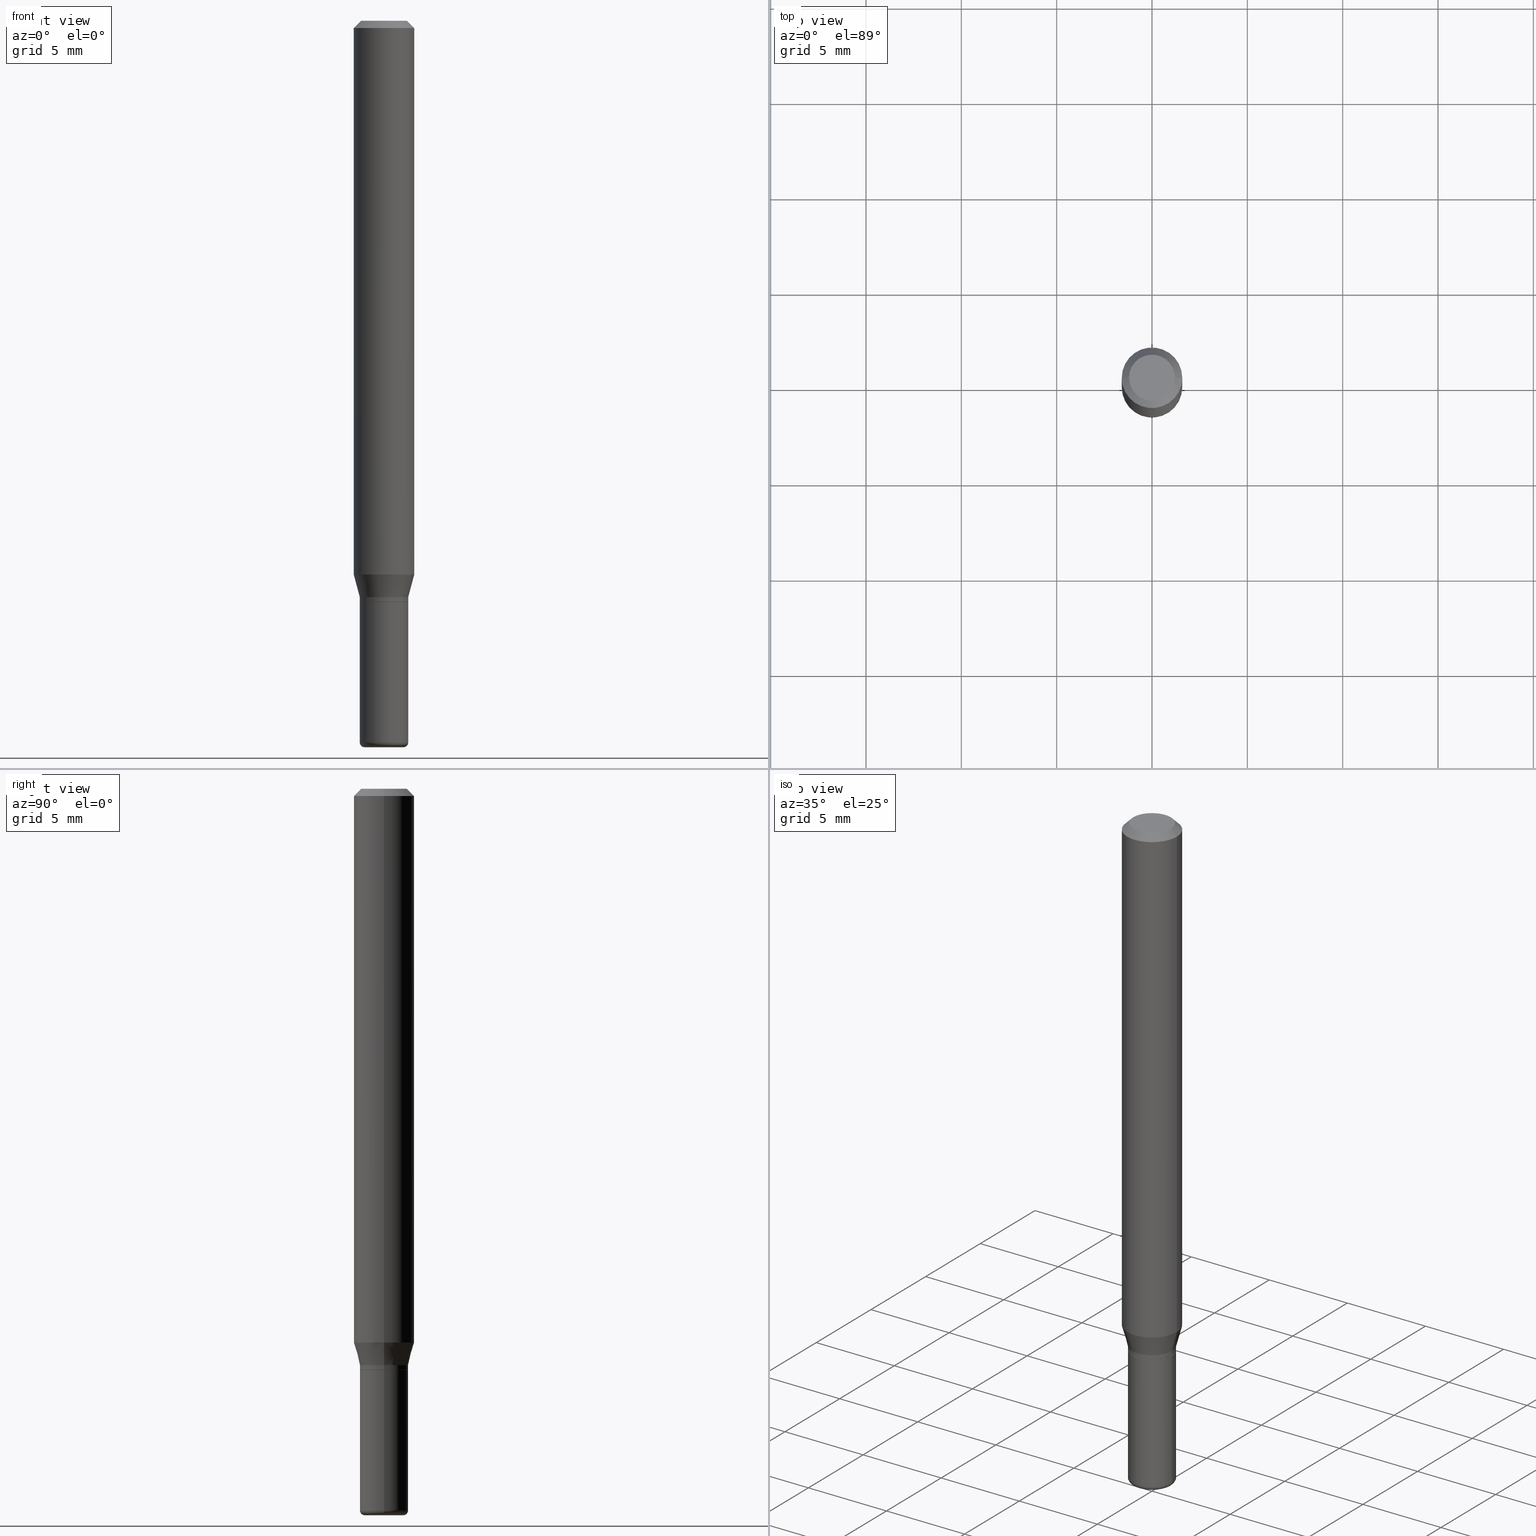
[diagram: canonical four-view strip — front | top / right | iso, engineering-drawing reading convention]
A machine part, canonical four-view strip (front | top / right | iso — engineering-drawing reading convention). The complete STEP part file that produces these views, byte-faithful:
ISO-10303-21;
HEADER;
FILE_DESCRIPTION (( 'STEP AP203' ),
    '1' );
FILE_NAME ('09079.STEP',
    '2024-02-29T21:54:36',
    ( '' ),
    ( '' ),
    'SwSTEP 2.0',
    'SolidWorks 2023',
    '' );
FILE_SCHEMA (( 'CONFIG_CONTROL_DESIGN' ));
ENDSEC;

DATA;
#1 = DATE_AND_TIME ( #123, #117 ) ;
#2 = CARTESIAN_POINT ( 'NONE',  ( 0.04949999999999997458, -4.535434259157245343E-15, -1.200000000000000178 ) ) ;
#3 = APPLICATION_PROTOCOL_DEFINITION ( 'international standard', 'config_control_design', 1994, #103 ) ;
#4 = ORIENTED_EDGE ( 'NONE', *, *, #510, .T. ) ;
#5 = CIRCLE ( 'NONE', #515, 0.04999999999999998196 ) ;
#6 = AXIS2_PLACEMENT_3D ( 'NONE', #409, #415, #56 ) ;
#7 = ORIENTED_EDGE ( 'NONE', *, *, #374, .F. ) ;
#8 = DATE_TIME_ROLE ( 'creation_date' ) ;
#9 = ADVANCED_FACE ( 'NONE', ( #127 ), #303, .T. ) ;
#10 = LINE ( 'NONE', #325, #244 ) ;
#11 = CARTESIAN_POINT ( 'NONE',  ( 2.910107879360313156E-29, -4.154862793223344154E-15, -1.190000000000000169 ) ) ;
#12 = EDGE_LOOP ( 'NONE', ( #482, #440 ) ) ;
#13 = SECURITY_CLASSIFICATION_LEVEL ( 'unclassified' ) ;
#14 = CARTESIAN_POINT ( 'NONE',  ( 2.933339833019071339E-29, -4.188031865942352722E-15, -1.199500000000000011 ) ) ;
#15 = EDGE_CURVE ( 'NONE', #270, #354, #278, .T. ) ;
#16 = AXIS2_PLACEMENT_3D ( 'NONE', #453, #287, #54 ) ;
#17 = FACE_OUTER_BOUND ( 'NONE', #476, .T. ) ;
#18 = DIRECTION ( 'NONE',  ( -2.445468806185136597E-29, 3.491481338843145583E-15, 1.000000000000000000 ) ) ;
#19 = CARTESIAN_POINT ( 'NONE',  ( -0.05000000000000000278, -4.340771032863981152E-15, -1.200000000000000178 ) ) ;
#20 = AXIS2_PLACEMENT_3D ( 'NONE', #435, #441, #121 ) ;
#21 = DIRECTION ( 'NONE',  ( -2.445468806185136877E-29, 3.491481338843145188E-15, 1.000000000000000000 ) ) ;
#22 = EDGE_CURVE ( 'NONE', #249, #208, #81, .T. ) ;
#23 = ORIENTED_EDGE ( 'NONE', *, *, #155, .T. ) ;
#24 = DIRECTION ( 'NONE',  ( -2.445468806185136597E-29, 3.491481338843145583E-15, 1.000000000000000000 ) ) ;
#25 = DIRECTION ( 'NONE',  ( -2.438088387897960049E-29, 3.491481338843145188E-15, 1.000000000000000000 ) ) ;
#26 = ORIENTED_EDGE ( 'NONE', *, *, #340, .T. ) ;
#27 = DIRECTION ( 'NONE',  ( -2.445468806185136597E-29, 3.491481338843145583E-15, 1.000000000000000000 ) ) ;
#28 = AXIS2_PLACEMENT_3D ( 'NONE', #82, #356, #162 ) ;
#29 = VECTOR ( 'NONE', #424, 39.37007874015748143 ) ;
#30 = PERSON_AND_ORGANIZATION ( #321, #328 ) ;
#31 = EDGE_LOOP ( 'NONE', ( #316, #232 ) ) ;
#32 = CC_DESIGN_PERSON_AND_ORGANIZATION_ASSIGNMENT ( #233, #355, ( #425 ) ) ;
#33 = DIRECTION ( 'NONE',  ( -0.7071067811864267805, 7.493145998869918709E-15, 0.7071067811866682540 ) ) ;
#34 = VERTEX_POINT ( 'NONE', #2 ) ;
#35 = APPROVAL_STATUS ( 'not_yet_approved' ) ;
#36 = CARTESIAN_POINT ( 'NONE',  ( -0.06250000000000000000, -1.578088385863924241E-15, -0.01499999999999970281 ) ) ;
#37 = CIRCLE ( 'NONE', #449, 0.06250000000000000000 ) ;
#38 = AXIS2_PLACEMENT_3D ( 'NONE', #276, #395, #358 ) ;
#39 =( NAMED_UNIT ( * ) SI_UNIT ( $, .STERADIAN. ) SOLID_ANGLE_UNIT ( ) );
#40 = CARTESIAN_POINT ( 'NONE',  ( 0.000000000000000000, 0.000000000000000000, 0.000000000000000000 ) ) ;
#41 = ADVANCED_FACE ( 'NONE', ( #195 ), #124, .T. ) ;
#42 = CARTESIAN_POINT ( 'NONE',  ( 0.06250000000000000000, -4.428418138700719093E-15, -1.143349364905388965 ) ) ;
#43 = CC_DESIGN_DATE_AND_TIME_ASSIGNMENT ( #293, #8, ( #465 ) ) ;
#44 = CALENDAR_DATE ( 2024, 29, 2 ) ;
#45 = DIRECTION ( 'NONE',  ( -1.000000000000000000, 7.105427357600958471E-15, 0.000000000000000000 ) ) ;
#46 = VECTOR ( 'NONE', #102, 39.37007874015748143 ) ;
#47 = AXIS2_PLACEMENT_3D ( 'NONE', #72, #311, #345 ) ;
#48 = ORIENTED_EDGE ( 'NONE', *, *, #110, .F. ) ;
#49 = PERSON_AND_ORGANIZATION_ROLE ( 'design_supplier' ) ;
#50 = CC_DESIGN_DATE_AND_TIME_ASSIGNMENT ( #372, #89, ( #370 ) ) ;
#51 = DIRECTION ( 'NONE',  ( -2.445468806185136597E-29, 3.491481338843145583E-15, 1.000000000000000000 ) ) ;
#52 = EDGE_LOOP ( 'NONE', ( #225, #4, #408, #120 ) ) ;
#53 = PERSON_AND_ORGANIZATION ( #321, #328 ) ;
#54 = DIRECTION ( 'NONE',  ( -1.000000000000000000, 6.982962677686266711E-15, 0.000000000000000000 ) ) ;
#55 = EDGE_CURVE ( 'NONE', #410, #67, #238, .T. ) ;
#56 = DIRECTION ( 'NONE',  ( 1.000000000000000000, -6.982962677686257244E-15, 0.000000000000000000 ) ) ;
#57 = AXIS2_PLACEMENT_3D ( 'NONE', #359, #443, #240 ) ;
#58 = CIRCLE ( 'NONE', #393, 0.04999999999999996114 ) ;
#59 = CARTESIAN_POINT ( 'NONE',  ( -0.04999999999999996114, -3.673742593419279671E-15, -1.190000000000000169 ) ) ;
#60 = ADVANCED_FACE ( 'NONE', ( #348 ), #351, .T. ) ;
#61 = CARTESIAN_POINT ( 'NONE',  ( 0.000000000000000000, 0.000000000000000000, 0.000000000000000000 ) ) ;
#62 = EDGE_CURVE ( 'NONE', #454, #428, #369, .T. ) ;
#63 = DIRECTION ( 'NONE',  ( 1.000000000000000000, -6.982962677686260400E-15, 0.000000000000000000 ) ) ;
#64 = AXIS2_PLACEMENT_3D ( 'NONE', #40, #242, #485 ) ;
#65 = AXIS2_PLACEMENT_3D ( 'NONE', #298, #189, #187 ) ;
#66 = DIRECTION ( 'NONE',  ( -2.445468806185136597E-29, 3.491481338843145583E-15, 1.000000000000000000 ) ) ;
#67 = VERTEX_POINT ( 'NONE', #42 ) ;
#68 = DIRECTION ( 'NONE',  ( -2.445468806185136597E-29, 3.491481338843145583E-15, 1.000000000000000000 ) ) ;
#69 = EDGE_LOOP ( 'NONE', ( #457, #267, #346, #118 ) ) ;
#70 = EDGE_CURVE ( 'NONE', #175, #322, #157, .T. ) ;
#71 = FACE_OUTER_BOUND ( 'NONE', #211, .T. ) ;
#72 = CARTESIAN_POINT ( 'NONE',  ( 0.000000000000000000, 0.000000000000000000, 0.000000000000000000 ) ) ;
#73 = CIRCLE ( 'NONE', #318, 0.04999999999999995420 ) ;
#74 = EDGE_LOOP ( 'NONE', ( #132, #365, #481, #236 ) ) ;
#75 = DIRECTION ( 'NONE',  ( 1.000000000000000000, -6.982962677686261189E-15, 0.000000000000000000 ) ) ;
#76 = DIRECTION ( 'NONE',  ( 1.000000000000000000, -6.982962677686269077E-15, 0.000000000000000000 ) ) ;
#77 = EDGE_CURVE ( 'NONE', #450, #249, #474, .T. ) ;
#78 = ORIENTED_EDGE ( 'NONE', *, *, #174, .F. ) ;
#79 = DIRECTION ( 'NONE',  ( -2.445468806185136597E-29, 3.491481338843145583E-15, 1.000000000000000000 ) ) ;
#80 =( LENGTH_UNIT ( ) NAMED_UNIT ( * ) SI_UNIT ( $, .METRE. ) );
#81 = CIRCLE ( 'NONE', #149, 0.04999999999999995420 ) ;
#82 = CARTESIAN_POINT ( 'NONE',  ( 2.934562567422164701E-29, -4.189777606611775804E-15, -1.200000000000000178 ) ) ;
#83 = APPROVAL_PERSON_ORGANIZATION ( #53, #375, #284 ) ;
#84 = FACE_OUTER_BOUND ( 'NONE', #31, .T. ) ;
#85 = CARTESIAN_POINT ( 'NONE',  ( 0.04000000000000000083, -5.481625701983738143E-15, -1.490000000000000213 ) ) ;
#86 = EDGE_CURVE ( 'NONE', #167, #208, #91, .T. ) ;
#87 = EDGE_LOOP ( 'NONE', ( #48, #137 ) ) ;
#88 = ORIENTED_EDGE ( 'NONE', *, *, #243, .T. ) ;
#89 = DATE_TIME_ROLE ( 'classification_date' ) ;
#90 = DIRECTION ( 'NONE',  ( -2.445468806185136597E-29, 3.491481338843145583E-15, 1.000000000000000000 ) ) ;
#91 = CIRCLE ( 'NONE', #378, 0.009999999999999953371 ) ;
#92 = CC_DESIGN_APPROVAL ( #375, ( #246 ) ) ;
#93 = EDGE_CURVE ( 'NONE', #167, #450, #483, .T. ) ;
#94 = VERTEX_POINT ( 'NONE', #36 ) ;
#95 = PERSON_AND_ORGANIZATION_ROLE ( 'classification_officer' ) ;
#96 = DIRECTION ( 'NONE',  ( -2.445468806185136597E-29, 3.491481338843145583E-15, 1.000000000000000000 ) ) ;
#97 = ORIENTED_EDGE ( 'NONE', *, *, #299, .T. ) ;
#98 = CARTESIAN_POINT ( 'NONE',  ( 2.910107879360313156E-29, -4.154862793223344154E-15, -1.190000000000000169 ) ) ;
#99 = COORDINATED_UNIVERSAL_TIME_OFFSET ( 5, 0, .BEHIND. ) ;
#100 = CARTESIAN_POINT ( 'NONE',  ( -0.04949999999999997458, -3.835409725236414304E-15, -1.200000000000000178 ) ) ;
#101 = AXIS2_PLACEMENT_3D ( 'NONE', #180, #332, #462 ) ;
#102 = DIRECTION ( 'NONE',  ( -2.445468806185136877E-29, 3.491481338843145188E-15, 1.000000000000000000 ) ) ;
#103 = APPLICATION_CONTEXT ( 'configuration controlled 3d designs of mechanical parts and assemblies' ) ;
#104 = EDGE_CURVE ( 'NONE', #329, #394, #438, .T. ) ;
#105 = CARTESIAN_POINT ( 'NONE',  ( 0.04750000000000000749, -4.035134999187568762E-16, 2.731847993664288856E-16 ) ) ;
#106 = ORIENTED_EDGE ( 'NONE', *, *, #126, .F. ) ;
#107 = CARTESIAN_POINT ( 'NONE',  ( 0.04949999999999997458, -4.535434259157245343E-15, -1.200000000000000178 ) ) ;
#108 = ORIENTED_EDGE ( 'NONE', *, *, #93, .T. ) ;
#109 = AXIS2_PLACEMENT_3D ( 'NONE', #11, #285, #138 ) ;
#110 = EDGE_CURVE ( 'NONE', #34, #270, #255, .T. ) ;
#111 = DIRECTION ( 'NONE',  ( 1.000000000000000000, -6.982962677686266711E-15, 0.000000000000000000 ) ) ;
#112 = EDGE_LOOP ( 'NONE', ( #423, #206, #402, #467 ) ) ;
#113 = CC_DESIGN_SECURITY_CLASSIFICATION ( #370, ( #246 ) ) ;
#114 = LINE ( 'NONE', #463, #256 ) ;
#115 = PRODUCT_DEFINITION_SHAPE ( 'NONE', 'NONE',  #465 ) ;
#116 = DIRECTION ( 'NONE',  ( -2.445468806185136597E-29, 3.491481338843145583E-15, 1.000000000000000000 ) ) ;
#117 = LOCAL_TIME ( 16, 54, 36.00000000000000000, #480 ) ;
#118 = ORIENTED_EDGE ( 'NONE', *, *, #414, .F. ) ;
#119 = ADVANCED_FACE ( 'NONE', ( #213 ), #492, .T. ) ;
#120 = ORIENTED_EDGE ( 'NONE', *, *, #142, .F. ) ;
#121 = DIRECTION ( 'NONE',  ( 1.000000000000000000, -6.982962677686262766E-15, 0.000000000000000000 ) ) ;
#122 = DIRECTION ( 'NONE',  ( 7.105427357601001859E-15, 1.000000000000000000, -3.491481338843145583E-15 ) ) ;
#123 = CALENDAR_DATE ( 2024, 29, 2 ) ;
#124 = CYLINDRICAL_SURFACE ( 'NONE', #64, 0.04999999999999998196 ) ;
#125 = PLANE ( 'NONE',  #412 ) ;
#126 = EDGE_CURVE ( 'NONE', #67, #252, #447, .T. ) ;
#127 = FACE_OUTER_BOUND ( 'NONE', #112, .T. ) ;
#128 = AXIS2_PLACEMENT_3D ( 'NONE', #306, #27, #258 ) ;
#129 = DIRECTION ( 'NONE',  ( 1.000000000000000000, -6.982962677686266711E-15, 4.876176775795935793E-29 ) ) ;
#130 = DIRECTION ( 'NONE',  ( 1.000000000000000000, -6.982962677686274599E-15, 0.000000000000000000 ) ) ;
#131 = APPROVAL ( #291, 'UNSPECIFIED' ) ;
#132 = ORIENTED_EDGE ( 'NONE', *, *, #427, .T. ) ;
#133 = DIRECTION ( 'NONE',  ( 1.000000000000000000, -6.982962677686266711E-15, 4.876176775795935793E-29 ) ) ;
#134 = ADVANCED_FACE ( 'NONE', ( #364 ), #487, .T. ) ;
#135 = ORIENTED_EDGE ( 'NONE', *, *, #77, .F. ) ;
#136 = FACE_OUTER_BOUND ( 'NONE', #486, .T. ) ;
#137 = ORIENTED_EDGE ( 'NONE', *, *, #436, .F. ) ;
#138 = DIRECTION ( 'NONE',  ( 1.000000000000000000, -6.982962677686260400E-15, 0.000000000000000000 ) ) ;
#139 = APPROVAL_STATUS ( 'not_yet_approved' ) ;
#140 = DIRECTION ( 'NONE',  ( 1.000000000000000000, -6.982962677686257244E-15, 0.000000000000000000 ) ) ;
#141 = DIRECTION ( 'NONE',  ( -2.445468806185136597E-29, 3.491481338843145583E-15, 1.000000000000000000 ) ) ;
#142 = EDGE_CURVE ( 'NONE', #94, #252, #37, .T. ) ;
#143 = AXIS2_PLACEMENT_3D ( 'NONE', #219, #173, #327 ) ;
#144 = CIRCLE ( 'NONE', #198, 0.04000000000000000083 ) ;
#145 = CARTESIAN_POINT ( 'NONE',  ( 2.934562567422164701E-29, -4.189777606611775804E-15, -1.200000000000000178 ) ) ;
#146 = FACE_OUTER_BOUND ( 'NONE', #275, .T. ) ;
#147 = CYLINDRICAL_SURFACE ( 'NONE', #168, 0.06250000000000000000 ) ;
#148 = ORIENTED_EDGE ( 'NONE', *, *, #319, .T. ) ;
#149 = AXIS2_PLACEMENT_3D ( 'NONE', #314, #513, #203 ) ;
#150 = CONICAL_SURFACE ( 'NONE', #297, 0.04999999999999996114, 0.2617993877991490748 ) ;
#151 = FACE_OUTER_BOUND ( 'NONE', #74, .T. ) ;
#152 = CARTESIAN_POINT ( 'NONE',  ( -0.04999999999999998196, -3.832760498062303103E-15, -1.199500000000000011 ) ) ;
#153 = CARTESIAN_POINT ( 'NONE',  ( 3.491481338843426713E-16, 0.04999999999999581168, -1.200000000000000400 ) ) ;
#154 = ORIENTED_EDGE ( 'NONE', *, *, #155, .F. ) ;
#155 = EDGE_CURVE ( 'NONE', #175, #410, #229, .T. ) ;
#156 = APPROVAL_PERSON_ORGANIZATION ( #455, #131, #253 ) ;
#157 = LINE ( 'NONE', #478, #309 ) ;
#158 = CARTESIAN_POINT ( 'NONE',  ( 3.643748521215853910E-29, -5.202307194876288105E-15, -1.490000000000000213 ) ) ;
#159 = CARTESIAN_POINT ( 'NONE',  ( 3.668203209277632395E-31, -5.237222008264614861E-17, -0.01499999999999970281 ) ) ;
#160 = EDGE_CURVE ( 'NONE', #354, #514, #5, .T. ) ;
#161 = APPROVAL_DATE_TIME ( #1, #381 ) ;
#162 = DIRECTION ( 'NONE',  ( 1.000000000000000000, -6.982962677686267499E-15, 0.000000000000000000 ) ) ;
#163 = APPLICATION_CONTEXT ( 'configuration controlled 3d designs of mechanical parts and assemblies' ) ;
#164 = ORIENTED_EDGE ( 'NONE', *, *, #506, .T. ) ;
#165 = COORDINATED_UNIVERSAL_TIME_OFFSET ( 5, 0, .BEHIND. ) ;
#166 = AXIS2_PLACEMENT_3D ( 'NONE', #498, #141, #257 ) ;
#167 = VERTEX_POINT ( 'NONE', #245 ) ;
#168 = AXIS2_PLACEMENT_3D ( 'NONE', #261, #68, #129 ) ;
#169 = CALENDAR_DATE ( 2024, 29, 2 ) ;
#170 = DIRECTION ( 'NONE',  ( 1.000000000000000000, -6.982962677686265922E-15, 4.876176775795935232E-29 ) ) ;
#171 = ADVANCED_BREP_SHAPE_REPRESENTATION ( '09079', ( #264, #444, #47 ), #178 ) ;
#172 = ORIENTED_EDGE ( 'NONE', *, *, #86, .T. ) ;
#173 = DIRECTION ( 'NONE',  ( -2.445468806185136597E-29, 3.491481338843145583E-15, 1.000000000000000000 ) ) ;
#174 = EDGE_CURVE ( 'NONE', #249, #428, #210, .T. ) ;
#175 = VERTEX_POINT ( 'NONE', #59 ) ;
#176 = CYLINDRICAL_SURFACE ( 'NONE', #143, 0.04999999999999996808 ) ;
#177 = CIRCLE ( 'NONE', #6, 0.04999999999999998196 ) ;
#178 =( GEOMETRIC_REPRESENTATION_CONTEXT ( 3 ) GLOBAL_UNCERTAINTY_ASSIGNED_CONTEXT ( ( #503 ) ) GLOBAL_UNIT_ASSIGNED_CONTEXT ( ( #389, #477, #39 ) ) REPRESENTATION_CONTEXT ( 'NONE', 'WORKASPACE' ) );
#179 = CARTESIAN_POINT ( 'NONE',  ( 0.04999999999999995420, -5.551455328760600652E-15, -1.490000000000000213 ) ) ;
#180 = CARTESIAN_POINT ( 'NONE',  ( 3.582686580359766038E-29, -5.359686688179453325E-15, -1.500000000000000222 ) ) ;
#181 = DIMENSIONAL_EXPONENTS ( 1.000000000000000000, 0.000000000000000000, 0.000000000000000000, 0.000000000000000000, 0.000000000000000000, 0.000000000000000000, 0.000000000000000000 ) ;
#182 = CARTESIAN_POINT ( 'NONE',  ( 2.934562567422164701E-29, -4.189777606611775804E-15, -1.200000000000000178 ) ) ;
#183 = VECTOR ( 'NONE', #437, 39.37007874015748143 ) ;
#184 = VECTOR ( 'NONE', #21, 39.37007874015748143 ) ;
#185 = DIRECTION ( 'NONE',  ( -2.445468806185136877E-29, 3.491481338843145188E-15, 1.000000000000000000 ) ) ;
#186 = CARTESIAN_POINT ( 'NONE',  ( 0.04999999999999996808, -3.491481338843131383E-16, 2.438088387897966495E-30 ) ) ;
#187 = DIRECTION ( 'NONE',  ( -1.000000000000000000, 6.982962677686265922E-15, -4.876176775795935793E-29 ) ) ;
#188 = VECTOR ( 'NONE', #185, 39.37007874015748143 ) ;
#189 = DIRECTION ( 'NONE',  ( 2.438088387897960049E-29, -3.491481338843145188E-15, -1.000000000000000000 ) ) ;
#190 = ADVANCED_FACE ( 'NONE', ( #292 ), #176, .T. ) ;
#191 = ORIENTED_EDGE ( 'NONE', *, *, #77, .T. ) ;
#192 = ORIENTED_EDGE ( 'NONE', *, *, #319, .F. ) ;
#193 = DESIGN_CONTEXT ( 'detailed design', #103, 'design' ) ;
#194 = DIRECTION ( 'NONE',  ( -2.445468806185136877E-29, 3.491481338843145188E-15, 1.000000000000000000 ) ) ;
#195 = FACE_OUTER_BOUND ( 'NONE', #205, .T. ) ;
#196 = DIRECTION ( 'NONE',  ( -0.7071067811865479058, 2.468850131082261005E-15, -0.7071067811865471286 ) ) ;
#197 = AXIS2_PLACEMENT_3D ( 'NONE', #231, #271, #390 ) ;
#198 = AXIS2_PLACEMENT_3D ( 'NONE', #307, #116, #336 ) ;
#199 = DIRECTION ( 'NONE',  ( 1.000000000000000000, -6.982962677686266711E-15, 4.852736867747365086E-29 ) ) ;
#200 = CC_DESIGN_PERSON_AND_ORGANIZATION_ASSIGNMENT ( #272, #315, ( #465 ) ) ;
#201 = EDGE_CURVE ( 'NONE', #329, #252, #10, .T. ) ;
#202 = CARTESIAN_POINT ( 'NONE',  ( -0.04999999999999996808, 3.552713678800498661E-16, -2.459467545127451560E-30 ) ) ;
#203 = DIRECTION ( 'NONE',  ( 1.000000000000000000, -6.982962677686261189E-15, 0.000000000000000000 ) ) ;
#204 = LINE ( 'NONE', #202, #461 ) ;
#205 = EDGE_LOOP ( 'NONE', ( #78, #363, #148, #241 ) ) ;
#206 = ORIENTED_EDGE ( 'NONE', *, *, #340, .F. ) ;
#207 = SHAPE_DEFINITION_REPRESENTATION ( #115, #171 ) ;
#208 = VERTEX_POINT ( 'NONE', #179 ) ;
#209 = ADVANCED_FACE ( 'NONE', ( #17 ), #360, .T. ) ;
#210 = LINE ( 'NONE', #367, #296 ) ;
#211 = EDGE_LOOP ( 'NONE', ( #135, #384, #172, #405 ) ) ;
#212 = APPROVAL_DATE_TIME ( #403, #375 ) ;
#213 = FACE_OUTER_BOUND ( 'NONE', #495, .T. ) ;
#214 = ORIENTED_EDGE ( 'NONE', *, *, #86, .F. ) ;
#215 = CARTESIAN_POINT ( 'NONE',  ( -0.04999999999999995420, -4.340771032863981940E-15, -1.490000000000000213 ) ) ;
#216 = AXIS2_PLACEMENT_3D ( 'NONE', #433, #79, #199 ) ;
#217 = AXIS2_PLACEMENT_3D ( 'NONE', #343, #511, #380 ) ;
#218 = ADVANCED_FACE ( 'NONE', ( #491 ), #251, .T. ) ;
#219 = CARTESIAN_POINT ( 'NONE',  ( 0.000000000000000000, 0.000000000000000000, 0.000000000000000000 ) ) ;
#220 = CARTESIAN_POINT ( 'NONE',  ( 0.04999999999999996114, -4.504010927107656701E-15, -1.190000000000000169 ) ) ;
#221 = CARTESIAN_POINT ( 'NONE',  ( 3.668203209277632395E-31, -5.237222008264614861E-17, -0.01499999999999970281 ) ) ;
#222 = AXIS2_PLACEMENT_3D ( 'NONE', #61, #18, #133 ) ;
#223 = CIRCLE ( 'NONE', #304, 0.06250000000000000000 ) ;
#224 = DIRECTION ( 'NONE',  ( -2.445468806185136597E-29, 3.491481338843145583E-15, 1.000000000000000000 ) ) ;
#225 = ORIENTED_EDGE ( 'NONE', *, *, #382, .F. ) ;
#226 = CARTESIAN_POINT ( 'NONE',  ( 2.934562567422164701E-29, -4.189777606611775804E-15, -1.200000000000000178 ) ) ;
#227 = ORIENTED_EDGE ( 'NONE', *, *, #496, .F. ) ;
#228 = LINE ( 'NONE', #186, #188 ) ;
#229 = CIRCLE ( 'NONE', #109, 0.04999999999999996114 ) ;
#230 = CC_DESIGN_PERSON_AND_ORGANIZATION_ASSIGNMENT ( #331, #49, ( #246 ) ) ;
#231 = CARTESIAN_POINT ( 'NONE',  ( 3.668203209277704895E-29, -5.237222008264718177E-15, -1.500000000000000222 ) ) ;
#232 = ORIENTED_EDGE ( 'NONE', *, *, #301, .T. ) ;
#233 = PERSON_AND_ORGANIZATION ( #321, #328 ) ;
#234 = ADVANCED_FACE ( 'NONE', ( #136 ), #237, .T. ) ;
#235 = ORIENTED_EDGE ( 'NONE', *, *, #55, .T. ) ;
#236 = ORIENTED_EDGE ( 'NONE', *, *, #55, .F. ) ;
#237 = CONICAL_SURFACE ( 'NONE', #16, 0.06250000000000000000, 0.7853981633974488341 ) ;
#238 = LINE ( 'NONE', #273, #183 ) ;
#239 = DIRECTION ( 'NONE',  ( 2.438088387897960049E-29, -3.491481338843145188E-15, -1.000000000000000000 ) ) ;
#240 = DIRECTION ( 'NONE',  ( 1.000000000000000000, -6.982962677686267499E-15, 0.000000000000000000 ) ) ;
#241 = ORIENTED_EDGE ( 'NONE', *, *, #301, .F. ) ;
#242 = DIRECTION ( 'NONE',  ( -2.445468806185136597E-29, 3.491481338843145583E-15, 1.000000000000000000 ) ) ;
#243 = EDGE_CURVE ( 'NONE', #514, #354, #177, .T. ) ;
#244 = VECTOR ( 'NONE', #248, 39.37007874015748143 ) ;
#245 = CARTESIAN_POINT ( 'NONE',  ( 0.04000000000000000083, -5.516540515372169003E-15, -1.500000000000000222 ) ) ;
#246 = PRODUCT_DEFINITION_FORMATION_WITH_SPECIFIED_SOURCE ( 'ANY', '', #425, .NOT_KNOWN. ) ;
#247 = ORIENTED_EDGE ( 'NONE', *, *, #201, .T. ) ;
#248 = DIRECTION ( 'NONE',  ( 0.7071067811865479058, -7.319954787623257623E-15, -0.7071067811865471286 ) ) ;
#249 = VERTEX_POINT ( 'NONE', #215 ) ;
#250 = PERSON_AND_ORGANIZATION ( #321, #328 ) ;
#251 = CYLINDRICAL_SURFACE ( 'NONE', #266, 0.04999999999999998196 ) ;
#252 = VERTEX_POINT ( 'NONE', #330 ) ;
#253 = APPROVAL_ROLE ( '' ) ;
#254 = DIRECTION ( 'NONE',  ( -2.445468806185136597E-29, 3.491481338843145583E-15, 1.000000000000000000 ) ) ;
#255 = CIRCLE ( 'NONE', #28, 0.04949999999999997458 ) ;
#256 = VECTOR ( 'NONE', #341, 39.37007874015748143 ) ;
#257 = DIRECTION ( 'NONE',  ( 1.000000000000000000, -6.982962677686261977E-15, 4.883557194083110659E-29 ) ) ;
#258 = DIRECTION ( 'NONE',  ( 1.000000000000000000, -6.982962677686266711E-15, 4.852736867747365086E-29 ) ) ;
#259 = ADVANCED_FACE ( 'NONE', ( #497 ), #439, .T. ) ;
#260 = CARTESIAN_POINT ( 'NONE',  ( 2.910107879360313156E-29, -4.154862793223344154E-15, -1.190000000000000169 ) ) ;
#261 = CARTESIAN_POINT ( 'NONE',  ( 0.000000000000000000, 0.000000000000000000, 0.000000000000000000 ) ) ;
#262 = ORIENTED_EDGE ( 'NONE', *, *, #160, .T. ) ;
#263 = LINE ( 'NONE', #107, #29 ) ;
#264 = MANIFOLD_SOLID_BREP ( 'Body-Move/Copy2[1]', #508 ) ;
#265 = DIRECTION ( 'NONE',  ( -2.445468806185136597E-29, 3.491481338843145583E-15, 1.000000000000000000 ) ) ;
#266 = AXIS2_PLACEMENT_3D ( 'NONE', #456, #96, #170 ) ;
#267 = ORIENTED_EDGE ( 'NONE', *, *, #15, .T. ) ;
#268 = CARTESIAN_POINT ( 'NONE',  ( -0.06250000000000000000, 3.840629472727455270E-16, -0.01499999999999970281 ) ) ;
#269 = DIRECTION ( 'NONE',  ( 2.445468806185136597E-29, -3.491481338843145583E-15, -1.000000000000000000 ) ) ;
#270 = VERTEX_POINT ( 'NONE', #100 ) ;
#271 = DIRECTION ( 'NONE',  ( -2.445468806185136597E-29, 3.491481338843145583E-15, 1.000000000000000000 ) ) ;
#272 = PERSON_AND_ORGANIZATION ( #321, #328 ) ;
#273 = CARTESIAN_POINT ( 'NONE',  ( 0.04999999999999996114, -4.504010927107656701E-15, -1.190000000000000169 ) ) ;
#274 = AXIS2_PLACEMENT_3D ( 'NONE', #159, #269, #312 ) ;
#275 = EDGE_LOOP ( 'NONE', ( #289, #262, #97, #154 ) ) ;
#276 = CARTESIAN_POINT ( 'NONE',  ( 2.796025206447715578E-29, -3.991982971345327424E-15, -1.143349364905388965 ) ) ;
#277 = AXIS2_PLACEMENT_3D ( 'NONE', #182, #66, #338 ) ;
#278 = LINE ( 'NONE', #442, #386 ) ;
#279 = LENGTH_MEASURE_WITH_UNIT ( LENGTH_MEASURE( 0.02539999999999999897 ), #80 );
#280 = ORIENTED_EDGE ( 'NONE', *, *, #414, .T. ) ;
#281 = ADVANCED_FACE ( 'NONE', ( #373 ), #295, .F. ) ;
#282 = CC_DESIGN_PERSON_AND_ORGANIZATION_ASSIGNMENT ( #458, #366, ( #246 ) ) ;
#283 = ORIENTED_EDGE ( 'NONE', *, *, #160, .F. ) ;
#284 = APPROVAL_ROLE ( '' ) ;
#285 = DIRECTION ( 'NONE',  ( -2.445468806185136597E-29, 3.491481338843145583E-15, 1.000000000000000000 ) ) ;
#286 = CALENDAR_DATE ( 2024, 29, 2 ) ;
#287 = DIRECTION ( 'NONE',  ( 2.445468806185136597E-29, -3.491481338843145583E-15, -1.000000000000000000 ) ) ;
#288 = TOROIDAL_SURFACE ( 'NONE', #217, 0.04000000000000000083, 0.009999999999999953371 ) ;
#289 = ORIENTED_EDGE ( 'NONE', *, *, #460, .F. ) ;
#290 = ADVANCED_FACE ( 'NONE', ( #333 ), #500, .F. ) ;
#291 = APPROVAL_STATUS ( 'not_yet_approved' ) ;
#292 = FACE_OUTER_BOUND ( 'NONE', #320, .T. ) ;
#293 = DATE_AND_TIME ( #286, #475 ) ;
#294 = DIRECTION ( 'NONE',  ( -2.445468806185136597E-29, 3.491481338843145583E-15, 1.000000000000000000 ) ) ;
#295 = PLANE ( 'NONE',  #101 ) ;
#296 = VECTOR ( 'NONE', #362, 39.37007874015748143 ) ;
#297 = AXIS2_PLACEMENT_3D ( 'NONE', #468, #416, #63 ) ;
#298 = CARTESIAN_POINT ( 'NONE',  ( 3.316907271900976589E-16, 0.04750000000000000749, -2.925296391183627249E-17 ) ) ;
#299 = EDGE_CURVE ( 'NONE', #514, #410, #228, .T. ) ;
#300 = CARTESIAN_POINT ( 'NONE',  ( 0.000000000000000000, 0.000000000000000000, 0.000000000000000000 ) ) ;
#301 = EDGE_CURVE ( 'NONE', #428, #454, #484, .T. ) ;
#302 = LINE ( 'NONE', #472, #184 ) ;
#303 = CONICAL_SURFACE ( 'NONE', #274, 0.06250000000000000000, 0.7853981633974488341 ) ;
#304 = AXIS2_PLACEMENT_3D ( 'NONE', #221, #24, #111 ) ;
#305 = ADVANCED_FACE ( 'NONE', ( #422 ), #377, .F. ) ;
#306 = CARTESIAN_POINT ( 'NONE',  ( -6.680649051745406845E-45, 9.538196290434862081E-31, 2.731847993664263218E-16 ) ) ;
#307 = CARTESIAN_POINT ( 'NONE',  ( 3.668203209277704895E-29, -5.237222008264718177E-15, -1.500000000000000222 ) ) ;
#308 = CARTESIAN_POINT ( 'NONE',  ( 2.934562567422164701E-29, -4.189777606611775804E-15, -1.200000000000000178 ) ) ;
#309 = VECTOR ( 'NONE', #430, 39.37007874015748143 ) ;
#310 = LOCAL_TIME ( 16, 54, 36.00000000000000000, #406 ) ;
#311 = DIRECTION ( 'NONE',  ( 0.000000000000000000, 0.000000000000000000, 1.000000000000000000 ) ) ;
#312 = DIRECTION ( 'NONE',  ( -1.000000000000000000, 6.982962677686266711E-15, 0.000000000000000000 ) ) ;
#313 = CARTESIAN_POINT ( 'NONE',  ( -0.04000000000000000083, -4.900020370478458562E-15, -1.500000000000000222 ) ) ;
#314 = CARTESIAN_POINT ( 'NONE',  ( 3.643748521215853910E-29, -5.202307194876288105E-15, -1.490000000000000213 ) ) ;
#315 = PERSON_AND_ORGANIZATION_ROLE ( 'creator' ) ;
#316 = ORIENTED_EDGE ( 'NONE', *, *, #62, .T. ) ;
#317 = ORIENTED_EDGE ( 'NONE', *, *, #374, .T. ) ;
#318 = AXIS2_PLACEMENT_3D ( 'NONE', #158, #429, #75 ) ;
#319 = EDGE_CURVE ( 'NONE', #208, #454, #114, .T. ) ;
#320 = EDGE_LOOP ( 'NONE', ( #88, #489, #434, #417 ) ) ;
#321 = PERSON ( 'UNSPECIFIED', 'UNSPECIFIED', 'UNSPECIFIED', ('UNSPECIFIED'), ('UNSPECIFIED'), ('UNSPECIFIED') ) ;
#322 = VERTEX_POINT ( 'NONE', #507 ) ;
#323 = DATE_AND_TIME ( #44, #501 ) ;
#324 = CARTESIAN_POINT ( 'NONE',  ( 2.934562567422164701E-29, -4.189777606611775804E-15, -1.200000000000000178 ) ) ;
#325 = CARTESIAN_POINT ( 'NONE',  ( 0.06250000000000000000, -4.811533449433669144E-16, -0.01499999999999970281 ) ) ;
#326 = ORIENTED_EDGE ( 'NONE', *, *, #70, .F. ) ;
#327 = DIRECTION ( 'NONE',  ( 1.000000000000000000, -6.982962677686267499E-15, 4.876176775795936353E-29 ) ) ;
#328 = ORGANIZATION ( 'UNSPECIFIED', 'UNSPECIFIED', '' ) ;
#329 = VERTEX_POINT ( 'NONE', #105 ) ;
#330 = CARTESIAN_POINT ( 'NONE',  ( 0.06250000000000000000, -4.888073874380378612E-16, -0.01499999999999970281 ) ) ;
#331 = PERSON_AND_ORGANIZATION ( #321, #328 ) ;
#332 = DIRECTION ( 'NONE',  ( -2.438088387897960049E-29, 3.491481338843145188E-15, 1.000000000000000000 ) ) ;
#333 = FACE_OUTER_BOUND ( 'NONE', #87, .T. ) ;
#334 = AXIS2_PLACEMENT_3D ( 'NONE', #98, #254, #494 ) ;
#335 = AXIS2_PLACEMENT_3D ( 'NONE', #300, #265, #466 ) ;
#336 = DIRECTION ( 'NONE',  ( 1.000000000000000000, -6.982962677686259611E-15, 0.000000000000000000 ) ) ;
#337 = ORIENTED_EDGE ( 'NONE', *, *, #506, .F. ) ;
#338 = DIRECTION ( 'NONE',  ( 1.000000000000000000, -6.982962677686267499E-15, 0.000000000000000000 ) ) ;
#339 = ORIENTED_EDGE ( 'NONE', *, *, #174, .T. ) ;
#340 = EDGE_CURVE ( 'NONE', #394, #329, #387, .T. ) ;
#341 = DIRECTION ( 'NONE',  ( -2.445468806185136877E-29, 3.491481338843145188E-15, 1.000000000000000000 ) ) ;
#342 = CIRCLE ( 'NONE', #20, 0.06250000000000000000 ) ;
#343 = CARTESIAN_POINT ( 'NONE',  ( 3.643748521215853910E-29, -5.202307194876288105E-15, -1.490000000000000213 ) ) ;
#344 = CC_DESIGN_APPROVAL ( #131, ( #370 ) ) ;
#345 = DIRECTION ( 'NONE',  ( 1.000000000000000000, 0.000000000000000000, 0.000000000000000000 ) ) ;
#346 = ORIENTED_EDGE ( 'NONE', *, *, #243, .F. ) ;
#347 = DIRECTION ( 'NONE',  ( -1.000000000000000000, 6.982962677686265922E-15, -4.876176775795935793E-29 ) ) ;
#348 = FACE_OUTER_BOUND ( 'NONE', #420, .T. ) ;
#349 = ADVANCED_FACE ( 'NONE', ( #71 ), #288, .T. ) ;
#350 = PRODUCT_RELATED_PRODUCT_CATEGORY ( 'detail', '', ( #425 ) ) ;
#351 = CONICAL_SURFACE ( 'NONE', #57, 0.04949999999999997458, 0.7853981633972775267 ) ;
#352 = ORIENTED_EDGE ( 'NONE', *, *, #104, .T. ) ;
#353 = LINE ( 'NONE', #268, #404 ) ;
#354 = VERTEX_POINT ( 'NONE', #152 ) ;
#355 = PERSON_AND_ORGANIZATION_ROLE ( 'design_owner' ) ;
#356 = DIRECTION ( 'NONE',  ( -2.445468806185136597E-29, 3.491481338843145583E-15, 1.000000000000000000 ) ) ;
#357 = ADVANCED_FACE ( 'NONE', ( #151 ), #150, .T. ) ;
#358 = DIRECTION ( 'NONE',  ( 1.000000000000000000, -6.982962677686262766E-15, 0.000000000000000000 ) ) ;
#359 = CARTESIAN_POINT ( 'NONE',  ( 2.934562567422164701E-29, -4.189777606611775804E-15, -1.200000000000000178 ) ) ;
#360 = CONICAL_SURFACE ( 'NONE', #334, 0.04999999999999996114, 0.2617993877991490748 ) ;
#361 = CIRCLE ( 'NONE', #38, 0.06250000000000000000 ) ;
#362 = DIRECTION ( 'NONE',  ( -2.445468806185136877E-29, 3.491481338843145188E-15, 1.000000000000000000 ) ) ;
#363 = ORIENTED_EDGE ( 'NONE', *, *, #22, .T. ) ;
#364 = FACE_OUTER_BOUND ( 'NONE', #52, .T. ) ;
#365 = ORIENTED_EDGE ( 'NONE', *, *, #70, .T. ) ;
#366 = PERSON_AND_ORGANIZATION_ROLE ( 'creator' ) ;
#367 = CARTESIAN_POINT ( 'NONE',  ( -0.04999999999999998196, 3.552713678800499647E-16, -2.459467545127451910E-30 ) ) ;
#368 = ORIENTED_EDGE ( 'NONE', *, *, #510, .F. ) ;
#369 = CIRCLE ( 'NONE', #411, 0.05000000000000000278 ) ;
#370 = SECURITY_CLASSIFICATION ( '', '', #13 ) ;
#371 = CARTESIAN_POINT ( 'NONE',  ( 3.668203209277632395E-31, -5.237222008264614861E-17, -0.01499999999999970281 ) ) ;
#372 = DATE_AND_TIME ( #169, #379 ) ;
#373 = FACE_OUTER_BOUND ( 'NONE', #12, .T. ) ;
#374 = EDGE_CURVE ( 'NONE', #252, #94, #223, .T. ) ;
#375 = APPROVAL ( #139, 'UNSPECIFIED' ) ;
#376 = DIRECTION ( 'NONE',  ( 1.000000000000000000, -6.982962677686260400E-15, 0.000000000000000000 ) ) ;
#377 = PLANE ( 'NONE',  #65 ) ;
#378 = AXIS2_PLACEMENT_3D ( 'NONE', #85, #473, #76 ) ;
#379 = LOCAL_TIME ( 16, 54, 36.00000000000000000, #99 ) ;
#380 = DIRECTION ( 'NONE',  ( 1.000000000000000000, -6.982962677686261977E-15, 4.883557194083110659E-29 ) ) ;
#381 = APPROVAL ( #35, 'UNSPECIFIED' ) ;
#382 = EDGE_CURVE ( 'NONE', #322, #94, #302, .T. ) ;
#383 = DIRECTION ( 'NONE',  ( 1.000000000000000000, -6.982962677686265922E-15, 4.876176775795935793E-29 ) ) ;
#384 = ORIENTED_EDGE ( 'NONE', *, *, #388, .T. ) ;
#385 = DIRECTION ( 'NONE',  ( 1.000000000000000000, -6.982962677686274599E-15, 0.000000000000000000 ) ) ;
#386 = VECTOR ( 'NONE', #33, 39.37007874015748143 ) ;
#387 = CIRCLE ( 'NONE', #128, 0.04750000000000000749 ) ;
#388 = EDGE_CURVE ( 'NONE', #450, #167, #144, .T. ) ;
#389 =( CONVERSION_BASED_UNIT ( 'INCH', #279 ) LENGTH_UNIT ( ) NAMED_UNIT ( #181 ) );
#390 = DIRECTION ( 'NONE',  ( 1.000000000000000000, -6.982962677686259611E-15, 0.000000000000000000 ) ) ;
#391 = CARTESIAN_POINT ( 'NONE',  ( 0.05000000000000000278, -4.538925740496089139E-15, -1.200000000000000178 ) ) ;
#392 = ORIENTED_EDGE ( 'NONE', *, *, #104, .F. ) ;
#393 = AXIS2_PLACEMENT_3D ( 'NONE', #260, #418, #376 ) ;
#394 = VERTEX_POINT ( 'NONE', #502 ) ;
#395 = DIRECTION ( 'NONE',  ( -2.445468806185136597E-29, 3.491481338843145583E-15, 1.000000000000000000 ) ) ;
#396 = ORIENTED_EDGE ( 'NONE', *, *, #382, .T. ) ;
#397 = ADVANCED_FACE ( 'NONE', ( #146 ), #471, .T. ) ;
#398 = CARTESIAN_POINT ( 'NONE',  ( 0.04999999999999998196, -4.537179999826666847E-15, -1.199500000000000011 ) ) ;
#399 = DIRECTION ( 'NONE',  ( -2.445468806185136597E-29, 3.491481338843145583E-15, 1.000000000000000000 ) ) ;
#400 = ORIENTED_EDGE ( 'NONE', *, *, #436, .T. ) ;
#401 = CARTESIAN_POINT ( 'NONE',  ( -0.04000000000000000083, -4.918090100572247779E-15, -1.490000000000000213 ) ) ;
#402 = ORIENTED_EDGE ( 'NONE', *, *, #496, .T. ) ;
#403 = DATE_AND_TIME ( #446, #310 ) ;
#404 = VECTOR ( 'NONE', #196, 39.37007874015748143 ) ;
#405 = ORIENTED_EDGE ( 'NONE', *, *, #22, .F. ) ;
#406 = COORDINATED_UNIVERSAL_TIME_OFFSET ( 5, 0, .BEHIND. ) ;
#407 = CARTESIAN_POINT ( 'NONE',  ( 0.06250000000000000000, -4.364351673553916694E-16, 3.047610484872459871E-30 ) ) ;
#408 = ORIENTED_EDGE ( 'NONE', *, *, #126, .T. ) ;
#409 = CARTESIAN_POINT ( 'NONE',  ( 2.933339833019071339E-29, -4.188031865942352722E-15, -1.199500000000000011 ) ) ;
#410 = VERTEX_POINT ( 'NONE', #220 ) ;
#411 = AXIS2_PLACEMENT_3D ( 'NONE', #308, #399, #130 ) ;
#412 = AXIS2_PLACEMENT_3D ( 'NONE', #153, #239, #347 ) ;
#413 = DIRECTION ( 'NONE',  ( 1.000000000000000000, -6.982962677686266711E-15, 0.000000000000000000 ) ) ;
#414 = EDGE_CURVE ( 'NONE', #34, #514, #263, .T. ) ;
#415 = DIRECTION ( 'NONE',  ( -2.445468806185136597E-29, 3.491481338843145583E-15, 1.000000000000000000 ) ) ;
#416 = DIRECTION ( 'NONE',  ( -2.445468806185136597E-29, 3.491481338843145583E-15, 1.000000000000000000 ) ) ;
#417 = ORIENTED_EDGE ( 'NONE', *, *, #299, .F. ) ;
#418 = DIRECTION ( 'NONE',  ( -2.445468806185136597E-29, 3.491481338843145583E-15, 1.000000000000000000 ) ) ;
#419 = AXIS2_PLACEMENT_3D ( 'NONE', #401, #122, #45 ) ;
#420 = EDGE_LOOP ( 'NONE', ( #505, #400, #280, #283 ) ) ;
#421 = AXIS2_PLACEMENT_3D ( 'NONE', #145, #25, #383 ) ;
#422 = FACE_OUTER_BOUND ( 'NONE', #445, .T. ) ;
#423 = ORIENTED_EDGE ( 'NONE', *, *, #201, .F. ) ;
#424 = DIRECTION ( 'NONE',  ( 0.7071067811864267805, -2.468850131080992517E-15, 0.7071067811866682540 ) ) ;
#425 = PRODUCT ( '09079', '09079', '', ( #512 ) ) ;
#426 = CIRCLE ( 'NONE', #277, 0.04949999999999997458 ) ;
#427 = EDGE_CURVE ( 'NONE', #410, #175, #58, .T. ) ;
#428 = VERTEX_POINT ( 'NONE', #19 ) ;
#429 = DIRECTION ( 'NONE',  ( -2.445468806185136597E-29, 3.491481338843145583E-15, 1.000000000000000000 ) ) ;
#430 = DIRECTION ( 'NONE',  ( -0.2588190451025204064, 5.211531920934543942E-15, 0.9659258262890684232 ) ) ;
#431 = EDGE_LOOP ( 'NONE', ( #464, #396, #7, #106 ) ) ;
#432 = APPLICATION_PROTOCOL_DEFINITION ( 'international standard', 'config_control_design', 1994, #163 ) ;
#433 = CARTESIAN_POINT ( 'NONE',  ( -6.680649051745406845E-45, 9.538196290434862081E-31, 2.731847993664263218E-16 ) ) ;
#434 = ORIENTED_EDGE ( 'NONE', *, *, #427, .F. ) ;
#435 = CARTESIAN_POINT ( 'NONE',  ( 2.796025206447715578E-29, -3.991982971345327424E-15, -1.143349364905388965 ) ) ;
#436 = EDGE_CURVE ( 'NONE', #270, #34, #426, .T. ) ;
#437 = DIRECTION ( 'NONE',  ( 0.2588190451025204064, 1.565188264969629659E-15, 0.9659258262890684232 ) ) ;
#438 = CIRCLE ( 'NONE', #216, 0.04750000000000000749 ) ;
#439 = CONICAL_SURFACE ( 'NONE', #452, 0.04949999999999997458, 0.7853981633972775267 ) ;
#440 = ORIENTED_EDGE ( 'NONE', *, *, #388, .F. ) ;
#441 = DIRECTION ( 'NONE',  ( -2.445468806185136597E-29, 3.491481338843145583E-15, 1.000000000000000000 ) ) ;
#442 = CARTESIAN_POINT ( 'NONE',  ( -0.04949999999999997458, -3.838058952410526294E-15, -1.200000000000000178 ) ) ;
#443 = DIRECTION ( 'NONE',  ( -2.445468806185136597E-29, 3.491481338843145583E-15, 1.000000000000000000 ) ) ;
#444 = MANIFOLD_SOLID_BREP ( 'Body-Move/Copy2[2]', #469 ) ;
#445 = EDGE_LOOP ( 'NONE', ( #26, #352 ) ) ;
#446 = CALENDAR_DATE ( 2024, 29, 2 ) ;
#447 = LINE ( 'NONE', #407, #46 ) ;
#448 = ADVANCED_FACE ( 'NONE', ( #504 ), #147, .T. ) ;
#449 = AXIS2_PLACEMENT_3D ( 'NONE', #371, #51, #413 ) ;
#450 = VERTEX_POINT ( 'NONE', #313 ) ;
#451 = APPROVAL_DATE_TIME ( #323, #131 ) ;
#452 = AXIS2_PLACEMENT_3D ( 'NONE', #324, #294, #459 ) ;
#453 = CARTESIAN_POINT ( 'NONE',  ( 3.668203209277632395E-31, -5.237222008264614861E-17, -0.01499999999999970281 ) ) ;
#454 = VERTEX_POINT ( 'NONE', #391 ) ;
#455 = PERSON_AND_ORGANIZATION ( #321, #328 ) ;
#456 = CARTESIAN_POINT ( 'NONE',  ( 0.000000000000000000, 0.000000000000000000, 0.000000000000000000 ) ) ;
#457 = ORIENTED_EDGE ( 'NONE', *, *, #110, .T. ) ;
#458 = PERSON_AND_ORGANIZATION ( #321, #328 ) ;
#459 = DIRECTION ( 'NONE',  ( 1.000000000000000000, -6.982962677686267499E-15, 0.000000000000000000 ) ) ;
#460 = EDGE_CURVE ( 'NONE', #354, #175, #204, .T. ) ;
#461 = VECTOR ( 'NONE', #194, 39.37007874015748143 ) ;
#462 = DIRECTION ( 'NONE',  ( 1.000000000000000000, -6.982962677686265922E-15, 4.876176775795935793E-29 ) ) ;
#463 = CARTESIAN_POINT ( 'NONE',  ( 0.04999999999999998196, -3.491481338843131876E-16, 2.438088387897966845E-30 ) ) ;
#464 = ORIENTED_EDGE ( 'NONE', *, *, #479, .T. ) ;
#465 = PRODUCT_DEFINITION ( 'UNKNOWN', '', #246, #193 ) ;
#466 = DIRECTION ( 'NONE',  ( 1.000000000000000000, -6.982962677686267499E-15, 4.876176775795936353E-29 ) ) ;
#467 = ORIENTED_EDGE ( 'NONE', *, *, #142, .T. ) ;
#468 = CARTESIAN_POINT ( 'NONE',  ( 2.910107879360313156E-29, -4.154862793223344154E-15, -1.190000000000000169 ) ) ;
#469 = CLOSED_SHELL ( 'NONE', ( #190, #259, #234, #448, #357, #209, #134, #9, #305, #290, #60, #397 ) ) ;
#470 = APPROVAL_PERSON_ORGANIZATION ( #30, #381, #517 ) ;
#471 = CYLINDRICAL_SURFACE ( 'NONE', #335, 0.04999999999999996808 ) ;
#472 = CARTESIAN_POINT ( 'NONE',  ( -0.06250000000000000000, 4.440892098500626162E-16, -3.074334431409316114E-30 ) ) ;
#473 = DIRECTION ( 'NONE',  ( -6.982962677686266711E-15, -1.000000000000000000, 3.491481338843145583E-15 ) ) ;
#474 = CIRCLE ( 'NONE', #419, 0.009999999999999953371 ) ;
#475 = LOCAL_TIME ( 16, 54, 36.00000000000000000, #165 ) ;
#476 = EDGE_LOOP ( 'NONE', ( #326, #23, #235, #368 ) ) ;
#477 =( NAMED_UNIT ( * ) PLANE_ANGLE_UNIT ( ) SI_UNIT ( $, .RADIAN. ) );
#478 = CARTESIAN_POINT ( 'NONE',  ( -0.04999999999999996114, -3.799591425343293746E-15, -1.190000000000000169 ) ) ;
#479 = EDGE_CURVE ( 'NONE', #67, #322, #342, .T. ) ;
#480 = COORDINATED_UNIVERSAL_TIME_OFFSET ( 5, 0, .BEHIND. ) ;
#481 = ORIENTED_EDGE ( 'NONE', *, *, #479, .F. ) ;
#482 = ORIENTED_EDGE ( 'NONE', *, *, #93, .F. ) ;
#483 = CIRCLE ( 'NONE', #197, 0.04000000000000000083 ) ;
#484 = CIRCLE ( 'NONE', #509, 0.05000000000000000278 ) ;
#485 = DIRECTION ( 'NONE',  ( 1.000000000000000000, -6.982962677686265922E-15, 4.876176775795935232E-29 ) ) ;
#486 = EDGE_LOOP ( 'NONE', ( #392, #247, #317, #227 ) ) ;
#487 = CYLINDRICAL_SURFACE ( 'NONE', #222, 0.06250000000000000000 ) ;
#488 = ADVANCED_FACE ( 'NONE', ( #84 ), #125, .F. ) ;
#489 = ORIENTED_EDGE ( 'NONE', *, *, #460, .T. ) ;
#490 = COORDINATED_UNIVERSAL_TIME_OFFSET ( 5, 0, .BEHIND. ) ;
#491 = FACE_OUTER_BOUND ( 'NONE', #493, .T. ) ;
#492 = TOROIDAL_SURFACE ( 'NONE', #166, 0.04000000000000000083, 0.009999999999999953371 ) ;
#493 = EDGE_LOOP ( 'NONE', ( #164, #339, #518, #192 ) ) ;
#494 = DIRECTION ( 'NONE',  ( 1.000000000000000000, -6.982962677686260400E-15, 0.000000000000000000 ) ) ;
#495 = EDGE_LOOP ( 'NONE', ( #108, #191, #337, #214 ) ) ;
#496 = EDGE_CURVE ( 'NONE', #394, #94, #353, .T. ) ;
#497 = FACE_OUTER_BOUND ( 'NONE', #69, .T. ) ;
#498 = CARTESIAN_POINT ( 'NONE',  ( 3.643748521215853910E-29, -5.202307194876288105E-15, -1.490000000000000213 ) ) ;
#499 = CC_DESIGN_PERSON_AND_ORGANIZATION_ASSIGNMENT ( #250, #95, ( #370 ) ) ;
#500 = PLANE ( 'NONE',  #421 ) ;
#501 = LOCAL_TIME ( 16, 54, 36.00000000000000000, #490 ) ;
#502 = CARTESIAN_POINT ( 'NONE',  ( -0.04750000000000000749, 3.578768372314221353E-16, 2.731847993664239060E-16 ) ) ;
#503 = UNCERTAINTY_MEASURE_WITH_UNIT (LENGTH_MEASURE( 1.000000000000000082E-05 ), #389, 'distance_accuracy_value', 'NONE');
#504 = FACE_OUTER_BOUND ( 'NONE', #431, .T. ) ;
#505 = ORIENTED_EDGE ( 'NONE', *, *, #15, .F. ) ;
#506 = EDGE_CURVE ( 'NONE', #208, #249, #73, .T. ) ;
#507 = CARTESIAN_POINT ( 'NONE',  ( -0.06250000000000000000, -3.547893761495265202E-15, -1.143349364905388965 ) ) ;
#508 = CLOSED_SHELL ( 'NONE', ( #119, #218, #488, #41, #349, #281 ) ) ;
#509 = AXIS2_PLACEMENT_3D ( 'NONE', #226, #224, #385 ) ;
#510 = EDGE_CURVE ( 'NONE', #322, #67, #361, .T. ) ;
#511 = DIRECTION ( 'NONE',  ( -2.445468806185136597E-29, 3.491481338843145583E-15, 1.000000000000000000 ) ) ;
#512 = MECHANICAL_CONTEXT ( 'NONE', #163, 'mechanical' ) ;
#513 = DIRECTION ( 'NONE',  ( -2.445468806185136597E-29, 3.491481338843145583E-15, 1.000000000000000000 ) ) ;
#514 = VERTEX_POINT ( 'NONE', #398 ) ;
#515 = AXIS2_PLACEMENT_3D ( 'NONE', #14, #90, #140 ) ;
#516 = CC_DESIGN_APPROVAL ( #381, ( #465 ) ) ;
#517 = APPROVAL_ROLE ( '' ) ;
#518 = ORIENTED_EDGE ( 'NONE', *, *, #62, .F. ) ;
ENDSEC;
END-ISO-10303-21;
